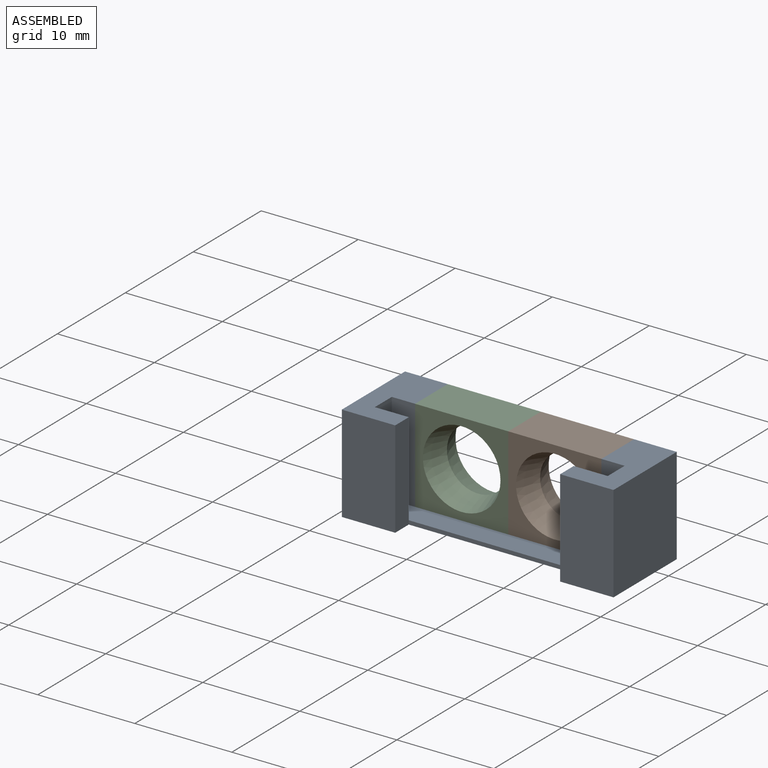
[diagram: assembled view]
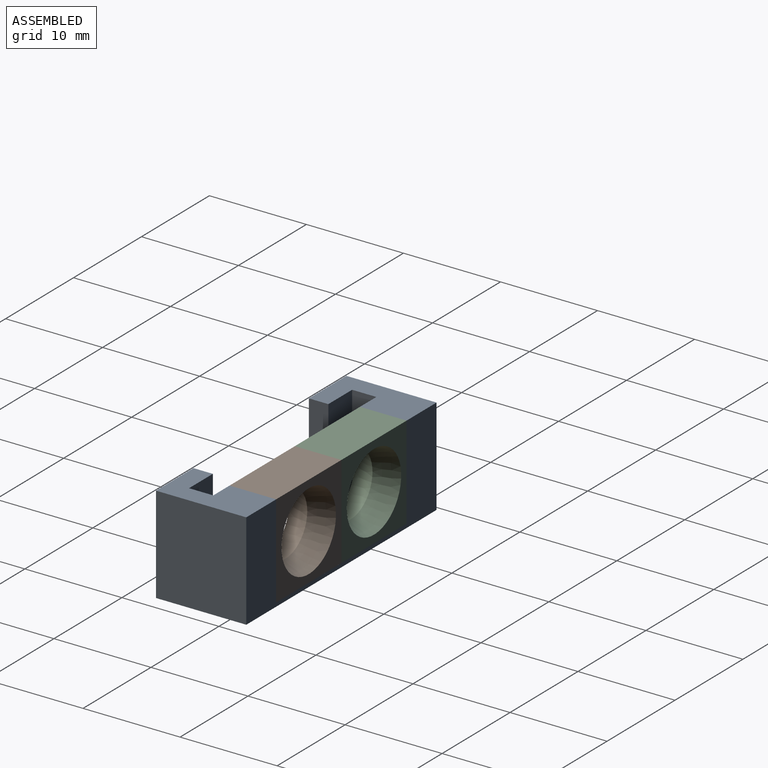
[diagram: assembled view, second angle]
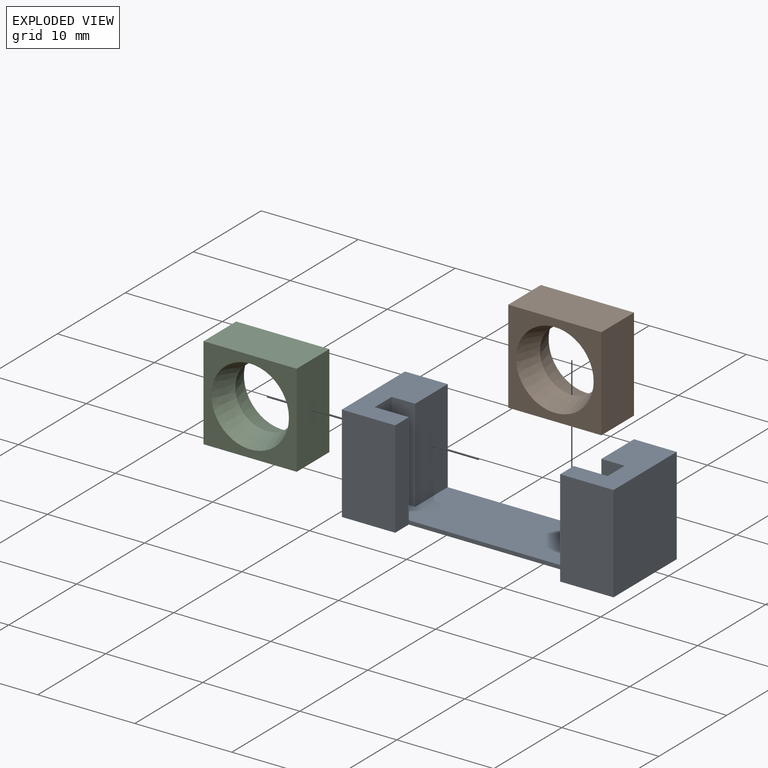
[diagram: exploded view]
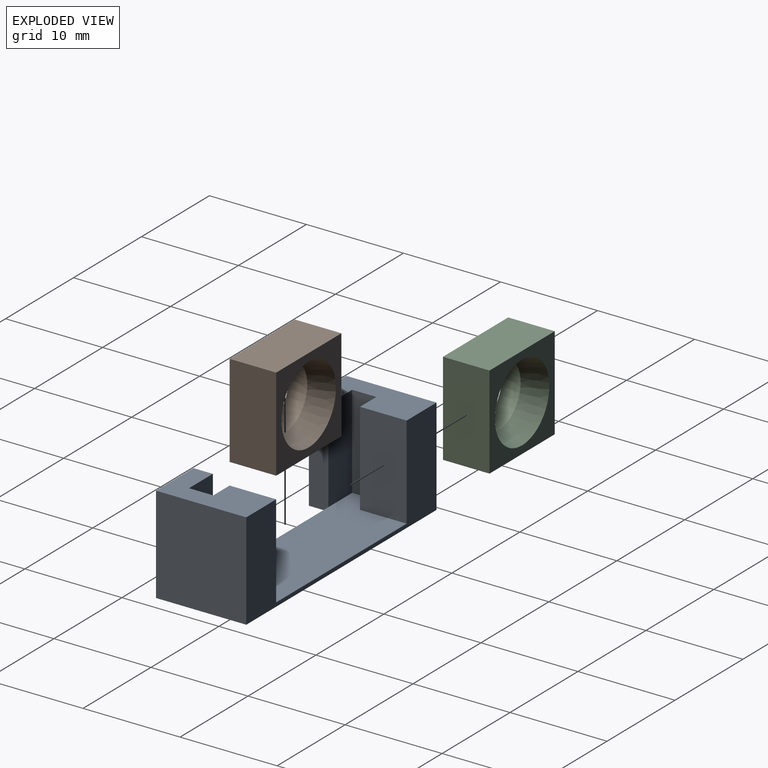
[diagram: exploded view, second angle]
ASSEMBLY  parts=3 mates=2
PART A: 20 faces, bbox 28x9.3x10 mm
  f0: plane 17x0.4mm, normal (0,-1,0), area 6.8mm2, adj f1,f7,f8,f9
  f1: plane 10x2mm, normal (-1,0,0), area 20mm2, adj f0,f2,f8,f18,f19
  f2: plane 10x5.5mm, normal (0,-1,0), area 55mm2, adj f1,f3,f8,f19
  f3: plane 10x9.3mm, normal (1,0,0), area 93mm2, adj f2,f4,f8,f19
  f4: plane 28x10mm, normal (0,1,0), area 95.7mm2, adj f3,f5,f8,f9,f11,f14,f15,f19
  f5: plane 10x9.3mm, normal (-1,0,0), area 93mm2, adj f4,f6,f8,f14
  f6: plane 10x5.5mm, normal (0,-1,0), area 55mm2, adj f5,f7,f8,f14
  f7: plane 10x2mm, normal (1,0,0), area 20mm2, adj f0,f6,f8,f12,f14
  f8: plane 28x9.3mm, normal (0,0,-1), area 226.4mm2, adj f0,f1,f2,f3,f4,f5,f6,f7
  f9: plane 24x7.3mm, normal (0,0,1), area 152.2mm2, adj f0,f4,f10,f11,f12,f13,f15,f16
  f10: plane 9.6x2.4mm, normal (0,-1,0), area 23mm2, adj f9,f11,f13,f14
  f11: plane 9.6x4.8mm, normal (1,0,0), area 46.1mm2, adj f4,f9,f10,f14
  f12: plane 9.6x3.5mm, normal (0,1,0), area 33.6mm2, adj f7,f9,f13,f14
  f13: plane 9.6x2.5mm, normal (1,0,0), area 24mm2, adj f9,f10,f12,f14
  f14: plane 9.3x5.5mm, normal (0,0,1), area 37.1mm2, adj f4,f5,f6,f7,f10,f11,f12,f13
  f15: plane 9.6x4.8mm, normal (-1,0,0), area 46.1mm2, adj f4,f9,f16,f19
  f16: plane 9.6x2.4mm, normal (0,-1,0), area 23mm2, adj f9,f15,f17,f19
  f17: plane 9.6x2.5mm, normal (-1,0,0), area 24mm2, adj f9,f16,f18,f19
  f18: plane 9.6x3.5mm, normal (0,1,0), area 33.6mm2, adj f1,f9,f17,f19
  f19: plane 9.3x5.5mm, normal (0,0,1), area 37.1mm2, adj f1,f2,f3,f4,f15,f16,f17,f18
PART B: 8 faces, bbox 9.6x9.6x4.8 mm
  f0: plane 9.6x9.6mm, normal (0,0,1), area 41.9mm2, adj f2,f4,f5,f6,f7
  f1: plane 9.6x9.6mm, normal (0,0,-1), area 41.9mm2, adj f3,f4,f5,f6,f7
  f2: cone r=3.2mm half-angle=18.4deg, axis (0,0,1), area 57.2mm2, adj f0,f3
  f3: cone r=4mm half-angle=18.4deg, axis (0,0,-1), area 57.2mm2, adj f1,f2
  f4: plane 9.6x4.8mm, normal (0,1,0), area 46.1mm2, adj f0,f1,f5,f6
  f5: plane 9.6x4.8mm, normal (1,0,0), area 46.1mm2, adj f0,f1,f4,f7
  f6: plane 9.6x4.8mm, normal (-1,0,0), area 46.1mm2, adj f0,f1,f4,f7
  f7: plane 9.6x4.8mm, normal (0,-1,0), area 46.1mm2, adj f0,f1,f5,f6
PART C: same geometry as B
PLACE A t=(-14.77,-3.76,-10.18)mm
PLACE B rot(axis=(1,0,0),90deg) t=(-9.97,2.29,-21.38)mm
PLACE C rot(axis=(1,0,0),90deg) t=(-19.57,2.29,-21.38)mm
MATE fastened B.f6 <-> C.f5  axis (-1,0,0) through (-14.77,-0.11,-5.38)mm
MATE fastened B.f5 <-> A.f15  axis (1,0,0) through (-5.17,-0.11,-5.38)mm
